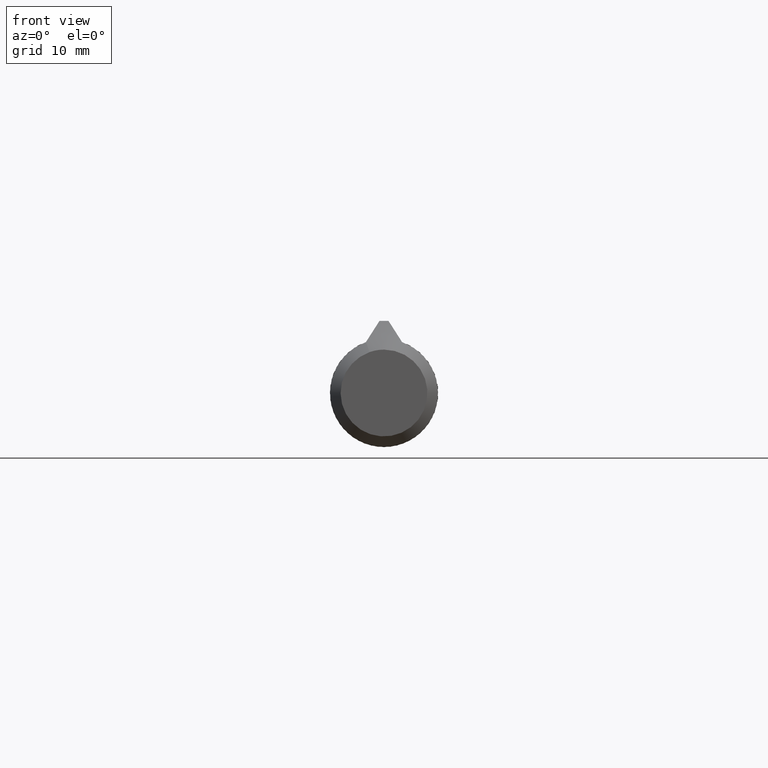
[diagram: clean part render]
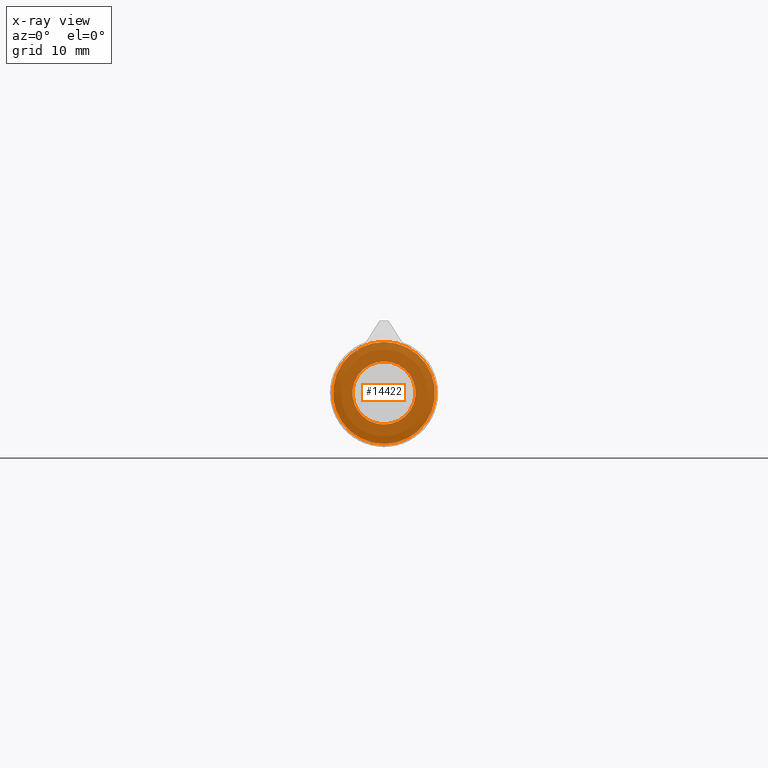
[diagram: x-ray — body ghosted, one internal face saturated and labeled with its STEP entity id]
A machine part, front view, then the same camera in x-ray: the body is ghosted and one INTERNAL B-rep face — a face not visible from any outside direction — is saturated and labeled: STEP entity #14422.
In plain terms, the highlighted planar face has unit normal (-0, 1, 0).
Its self-contained STEP definition (entity closure, byte-faithful):
#1356 = CIRCLE ( 'NONE', #15666, 5.656854249492380582 ) ;
#2652 = CARTESIAN_POINT ( 'NONE',  ( 1.111333247649786998E-13, 38.50000000000036238, 0.000000000000000000 ) ) ;
#4266 = ORIENTED_EDGE ( 'NONE', *, *, #17176, .F. ) ;
#4540 = CARTESIAN_POINT ( 'NONE',  ( 1.111333247649786998E-13, 38.50000000000036238, 0.000000000000000000 ) ) ;
#4779 = DIRECTION ( 'NONE',  ( 0.000000000000000000, 0.000000000000000000, 1.000000000000000000 ) ) ;
#4826 = FACE_BOUND ( 'NONE', #7474, .T. ) ;
#5108 = CARTESIAN_POINT ( 'NONE',  ( 1.111333247649786998E-13, 38.50000000000036238, -5.656854249492380582 ) ) ;
#5291 = EDGE_LOOP ( 'NONE', ( #11276 ) ) ;
#7175 = VERTEX_POINT ( 'NONE', #5108 ) ;
#7284 = CARTESIAN_POINT ( 'NONE',  ( 1.111333247649786998E-13, 38.50000000000036238, 0.000000000000000000 ) ) ;
#7340 = DIRECTION ( 'NONE',  ( 0.000000000000000000, 0.000000000000000000, -1.000000000000000000 ) ) ;
#7474 = EDGE_LOOP ( 'NONE', ( #4266 ) ) ;
#7830 = CARTESIAN_POINT ( 'NONE',  ( 1.111333247649786998E-13, 38.50000000000036238, 3.500000000000000000 ) ) ;
#8869 = DIRECTION ( 'NONE',  ( 2.886579864025390439E-15, 1.000000000000000000, -0.000000000000000000 ) ) ;
#11276 = ORIENTED_EDGE ( 'NONE', *, *, #15781, .F. ) ;
#11436 = VERTEX_POINT ( 'NONE', #7830 ) ;
#11901 = CIRCLE ( 'NONE', #14657, 3.500000000000000000 ) ;
#12239 = DIRECTION ( 'NONE',  ( 0.000000000000000000, 0.000000000000000000, 1.000000000000000000 ) ) ;
#13628 = FACE_OUTER_BOUND ( 'NONE', #5291, .T. ) ;
#14148 = DIRECTION ( 'NONE',  ( -2.886579864025390439E-15, -1.000000000000000000, 0.000000000000000000 ) ) ;
#14422 = ADVANCED_FACE ( 'NONE', ( #4826, #13628 ), #15682, .T. ) ;
#14657 = AXIS2_PLACEMENT_3D ( 'NONE', #2652, #17615, #12239 ) ;
#15666 = AXIS2_PLACEMENT_3D ( 'NONE', #7284, #14148, #7340 ) ;
#15682 = PLANE ( 'NONE',  #16020 ) ;
#15781 = EDGE_CURVE ( 'NONE', #7175, #7175, #1356, .T. ) ;
#16020 = AXIS2_PLACEMENT_3D ( 'NONE', #4540, #8869, #4779 ) ;
#17176 = EDGE_CURVE ( 'NONE', #11436, #11436, #11901, .T. ) ;
#17615 = DIRECTION ( 'NONE',  ( 2.886579864025390439E-15, 1.000000000000000000, 0.000000000000000000 ) ) ;